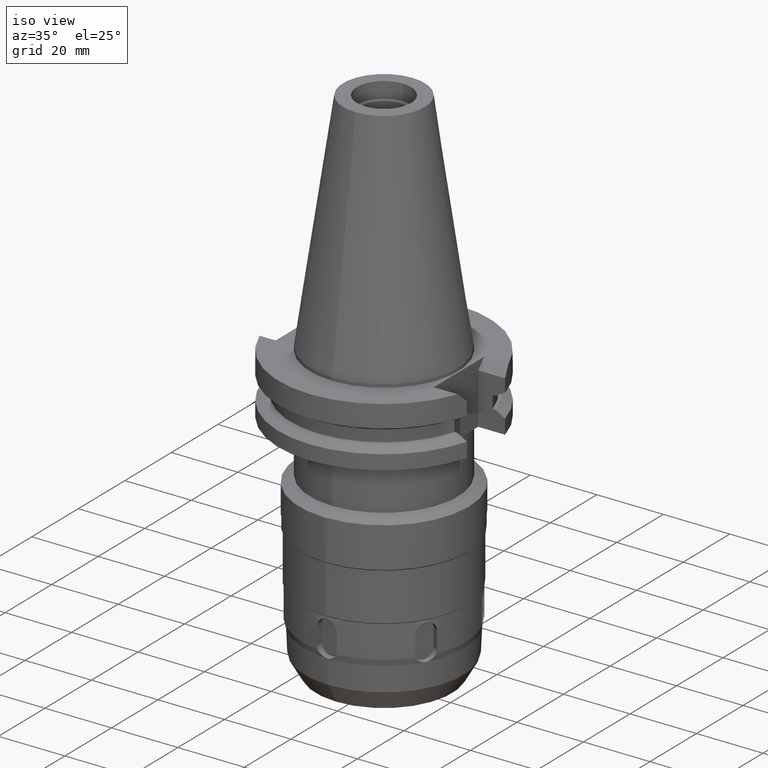
[diagram: clean part render]
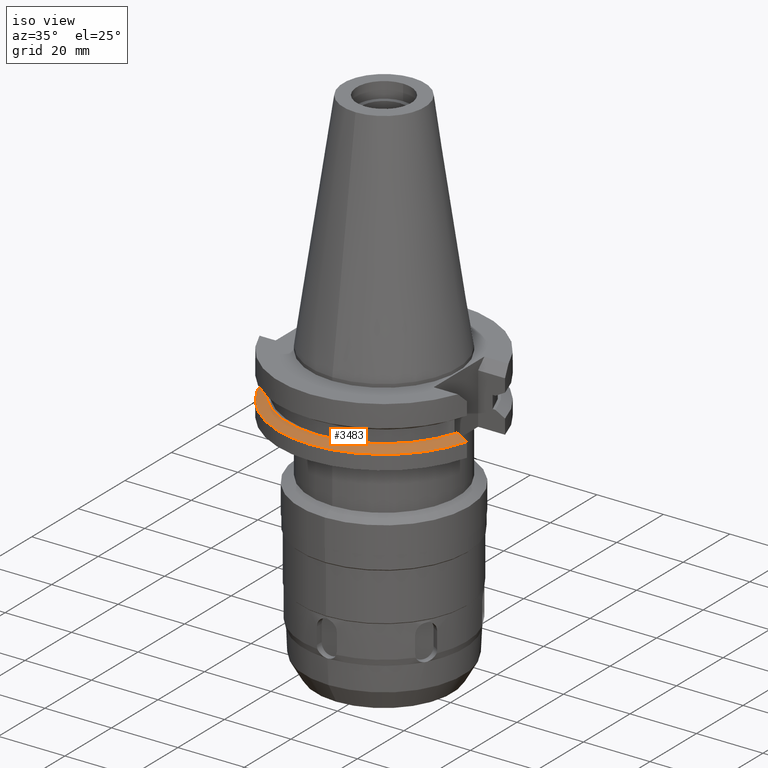
[diagram: same view with one face highlighted and labeled with its STEP entity id]
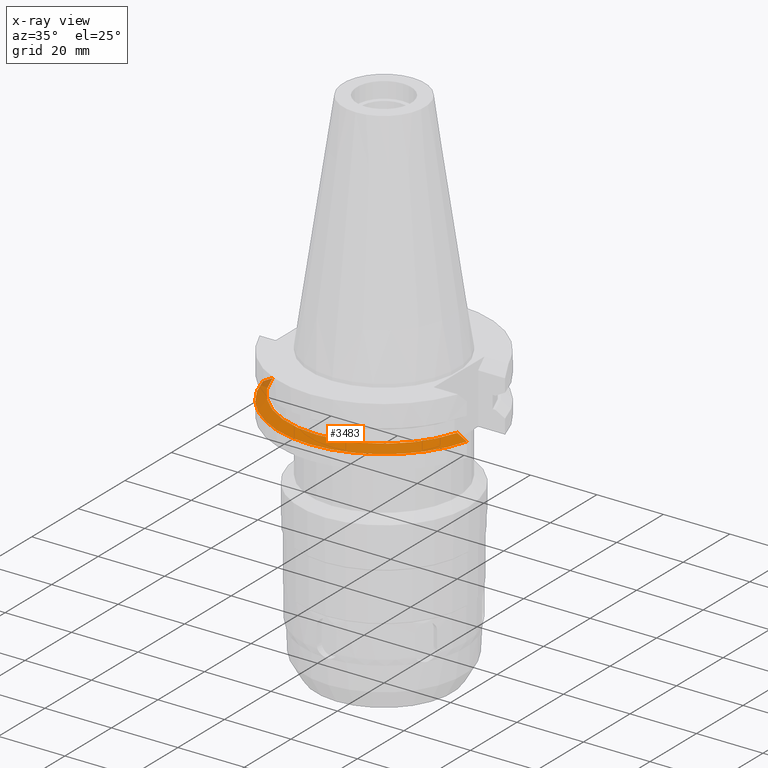
[diagram: x-ray of the same camera — body ghosted, the highlighted face saturated]
A machine part, iso view. The second image highlights one B-rep face of the part: STEP entity #3483.
The next image is the same camera in x-ray: the body ghosted, the highlighted face saturated — about 2% of this face is hidden behind the body in this view.
In plain terms, the highlighted conical surface has half-angle 60 deg.
Its self-contained STEP definition (entity closure, byte-faithful):
#750=CARTESIAN_POINT('',(0.E0,1.055021971276E-14,-1.305E1));
#751=DIRECTION('',(0.E0,0.E0,-1.E0));
#752=DIRECTION('',(9.592224574149E-1,-2.826522195047E-1,0.E0));
#753=AXIS2_PLACEMENT_3D('',#750,#751,#752);
#758=CARTESIAN_POINT('',(0.E0,1.055021971276E-14,-1.305E1));
#759=DIRECTION('',(0.E0,0.E0,-1.E0));
#760=DIRECTION('',(0.E0,-1.E0,0.E0));
#761=AXIS2_PLACEMENT_3D('',#758,#759,#760);
#782=CARTESIAN_POINT('',(2.779398348536E1,-8.190000189141E0,-1.305E1));
#783=CARTESIAN_POINT('',(2.810658330592E1,-8.190000189141E0,-1.322312007532E1));
#784=CARTESIAN_POINT('',(2.873681505180E1,-8.189999991895E0,-1.357261190786E1));
#785=CARTESIAN_POINT('',(2.969731086275E1,-8.189999744658E0,-1.410657763648E1));
#786=CARTESIAN_POINT('',(3.034774597319E1,-8.190000601202E0,-1.446901629665E1));
#787=CARTESIAN_POINT('',(3.067550146538E1,-8.190000601202E0,-1.465184201454E1));
#792=CARTESIAN_POINT('',(0.E0,1.055021971276E-14,-1.465183664206E1));
#793=DIRECTION('',(0.E0,0.E0,-1.E0));
#794=DIRECTION('',(9.661575315241E-1,-2.579527559055E-1,0.E0));
#795=AXIS2_PLACEMENT_3D('',#792,#793,#794);
#800=CARTESIAN_POINT('',(0.E0,1.055021971276E-14,-1.465183664206E1));
#801=DIRECTION('',(0.E0,0.E0,-1.E0));
#802=DIRECTION('',(0.E0,-1.E0,0.E0));
#803=AXIS2_PLACEMENT_3D('',#800,#801,#802);
#808=CARTESIAN_POINT('',(-3.067550165919E1,-8.189999875265E0,
-1.465183552741E1));
#809=CARTESIAN_POINT('',(-3.034775205532E1,-8.189999875265E0,
-1.446901309063E1));
#810=CARTESIAN_POINT('',(-2.969731250660E1,-8.189999973652E0,
-1.410658119150E1));
#811=CARTESIAN_POINT('',(-2.873682020954E1,-8.190000279321E0,
-1.357261758459E1));
#812=CARTESIAN_POINT('',(-2.810658348935E1,-8.189999365817E0,
-1.322311331402E1));
#813=CARTESIAN_POINT('',(-2.779399588573E1,-8.189999365817E0,-1.305E1));
#2780=CARTESIAN_POINT('',(3.067550146538E1,-8.190000601202E0,
-1.465184201454E1));
#2781=VERTEX_POINT('',#2780);
#2782=VERTEX_POINT('',#782);
#2792=CARTESIAN_POINT('',(-3.067550165919E1,-8.189999875265E0,
-1.465183552741E1));
#2793=VERTEX_POINT('',#2792);
#2794=CARTESIAN_POINT('',(0.E0,-3.175E1,-1.465183664206E1));
#2795=VERTEX_POINT('',#2794);
#2813=CARTESIAN_POINT('',(-2.779399588573E1,-8.189999365817E0,-1.305E1));
#2814=VERTEX_POINT('',#2813);
#2835=CARTESIAN_POINT('',(0.E0,-2.897553755053E1,-1.305E1));
#2836=VERTEX_POINT('',#2835);
#3470=CARTESIAN_POINT('',(0.E0,1.055021971276E-14,-1.385091832103E1));
#3471=DIRECTION('',(0.E0,0.E0,-1.E0));
#3472=DIRECTION('',(0.E0,-1.E0,0.E0));
#3473=AXIS2_PLACEMENT_3D('',#3470,#3471,#3472);
#3474=CONICAL_SURFACE('',#3473,3.036276877527E1,6.E1);
#3475=ORIENTED_EDGE('',*,*,#3350,.T.);
#3476=ORIENTED_EDGE('',*,*,#3378,.T.);
#3477=ORIENTED_EDGE('',*,*,#3376,.T.);
#3478=ORIENTED_EDGE('',*,*,#3400,.T.);
#3479=ORIENTED_EDGE('',*,*,#3462,.F.);
#3480=ORIENTED_EDGE('',*,*,#3460,.F.);
#3481=EDGE_LOOP('',(#3475,#3476,#3477,#3478,#3479,#3480));
#3482=FACE_OUTER_BOUND('',#3481,.F.);
#754=CIRCLE('',#753,2.897553755053E1);
#762=CIRCLE('',#761,2.897553755053E1);
#788=B_SPLINE_CURVE_WITH_KNOTS('',3,(#782,#783,#784,#785,#786,#787),
.UNSPECIFIED.,.F.,.F.,(4,1,1,4),(0.E0,3.333333333333E-1,6.666666666667E-1,1.E0),
.UNSPECIFIED.);
#796=CIRCLE('',#795,3.175E1);
#804=CIRCLE('',#803,3.175E1);
#814=B_SPLINE_CURVE_WITH_KNOTS('',3,(#808,#809,#810,#811,#812,#813),
.UNSPECIFIED.,.F.,.F.,(4,1,1,4),(0.E0,3.333333333333E-1,6.666666666667E-1,1.E0),
.UNSPECIFIED.);
#3350=EDGE_CURVE('',#2782,#2781,#788,.T.);
#3376=EDGE_CURVE('',#2795,#2793,#804,.T.);
#3378=EDGE_CURVE('',#2781,#2795,#796,.T.);
#3400=EDGE_CURVE('',#2793,#2814,#814,.T.);
#3460=EDGE_CURVE('',#2782,#2836,#754,.T.);
#3462=EDGE_CURVE('',#2836,#2814,#762,.T.);
#3483=ADVANCED_FACE('',(#3482),#3474,.T.);